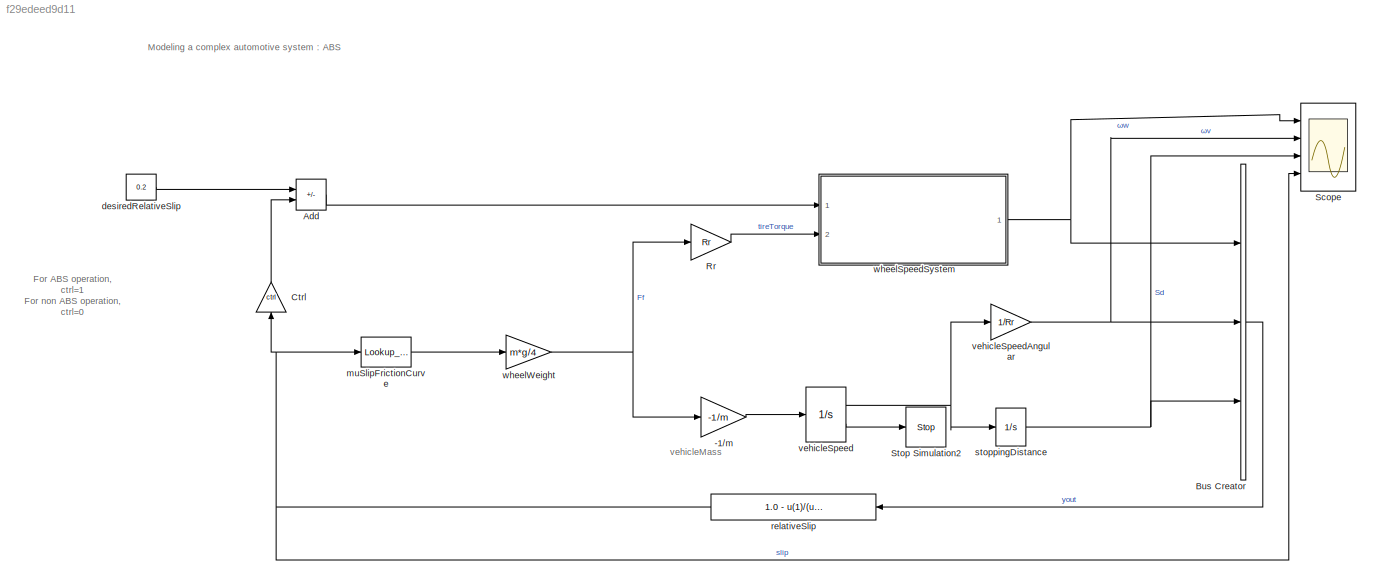
MODEL slx_f29edeed9d11
KIND model
CONFIG AbsTol = 1e-6
CONFIG EnableMultiTasking = off
CONFIG FixedStep = auto
CONFIG InitFcn = g = 32.18;\nv0 = 88;\nRr = 15/12;  \nKf = 1;\nm = 50;\nPBmax = 1500;\nTB = 0.01;\nI = 5;\n\nslip = (0:.05:1.0); \nmu = [0 .4 .8 .97 1.0 .98 .96 .94 .92 .9 .88 .855 .83 .81 .79 .77 .75 .73 .72 .71 .7];\nctrl = 1;
CONFIG MaxStep = 0.01
CONFIG MinStep = auto
CONFIG PostLoadFcn = g = 32.18;\nv0 = 88;\nRr = 15/12;  \nKf = 1;\nm = 50;\nPBmax = 1500;\nTB = 0.01;\nI = 5;\n\nslip = (0:.05:1.0); \nmu = [0 .4 .8 .97 1.0 .98 .96 .94 .92 .9 .88 .855 .83 .81 .79 .77 .75 .73 .72 .71 .7];\nctrl = 1;
CONFIG RelTol = 1e-3
CONFIG SampleTimeConstraint = Unconstrained
CONFIG SolverName = ode45
CONFIG StartTime = 0.0
CONFIG StopTime = 25
BLOCK [Gain] -1//m
  Gain = -1/m
  OutDataTypeStr = Inherit: Same as input
  ParamDataTypeStr = Inherit: Same as input
  SaturateOnIntegerOverflow = on
BLOCK [Sum] Add
  IconShape = rectangular
  Inputs = +-
  Ports = [2, 1]
BLOCK [BusCreator] Bus Creator
  DisplayOption = bar
  InheritFromInputs = on
  Inputs = 3
  Ports = [3, 1]
BLOCK [Gain] Ctrl
  Gain = ctrl
  NameLocation = left
  OutDataTypeStr = Inherit: Same as input
  ParamDataTypeStr = Inherit: Same as input
  SaturateOnIntegerOverflow = on
BLOCK [Gain] Rr
  Gain = Rr
  OutDataTypeStr = Inherit: Same as input
  ParamDataTypeStr = Inherit: Same as input
  SaturateOnIntegerOverflow = on
BLOCK [Scope] Scope
  Floating = off
  NumInputPorts = 4
  Ports = [4]
  ScopeSpecificationString = Simulink.scopes.TimeScopeBlockCfg('CurrentConfiguration', extmgr.ConfigurationSet(extmgr.Configuration('Core','General UI',true),extmgr.Configuration('Core','Source UI',true),extmgr.Configuration('Sources','WiredSimulink',true),extmgr.Configuration('Visuals','Time Domain',true,'SerializedDisplays',{struct('MinYLimReal','-8.8','MaxYLimReal','79.2','YLabelReal','','MinYLimMag','0.00000','MaxYLimMag'...<+3414ch>
BLOCK [Stop] Stop Simulation2
BLOCK [Constant] desiredRelativeSlip
  Value = 0.2
BLOCK [Lookup_n-D] muSlipFrictionCurve
  BreakpointsForDimension1 = slip
  InputPortMap = u0
  NumberOfTableDimensions = 1
  Ports = [1, 1]
  SaturateOnIntegerOverflow = on
  Table = mu
BLOCK [Fcn] relativeSlip
  Expr = 1.0 - u(1)/(u(2) + (u(2)==0)*eps)
BLOCK [Integrator] stoppingDistance
  LowerSaturationLimit = 0
  Ports = [1, 1]
  UpperSaturationLimit = 1000
BLOCK [Integrator] vehicleSpeed
  InitialCondition = v0
  LimitOutput = on
  LowerSaturationLimit = 0
  Ports = [1, 2]
  ShowSaturationPort = on
  UpperSaturationLimit = 1000
BLOCK [Gain] vehicleSpeedAngular
  Gain = 1/Rr
  OutDataTypeStr = Inherit: Same as input
  ParamDataTypeStr = Inherit: Same as input
  SaturateOnIntegerOverflow = on
BLOCK [ModelReference] wheelSpeedSystem
  ModelNameDialog = wheelSpeedSystem
  ModelReferenceVersion = 1.16
  Ports = [2, 1]
BLOCK [Gain] wheelWeight
  Gain = m*g/4
  OutDataTypeStr = Inherit: Same as input
  ParamDataTypeStr = Inherit: Same as input
  SaturateOnIntegerOverflow = on
ANNOTATION (root): Modeling a complex automotive system : ABS
ANNOTATION (root): For ABS operation, ctrl=1 For non ABS operation, ctrl=0
ANNOTATION (root): vehicleMass
LINE -1//m:1 -> vehicleSpeed:1
LINE Add:1 -> wheelSpeedSystem:1
LINE Bus Creator:1 -> relativeSlip:1
LINE Ctrl:1 -> Add:2
LINE Rr:1 -> wheelSpeedSystem:2
LINE desiredRelativeSlip:1 -> Add:1
LINE muSlipFrictionCurve:1 -> wheelWeight:1
NET relativeSlip:1 -> Ctrl:1, Scope:4, muSlipFrictionCurve:1
NET stoppingDistance:1 -> Bus Creator:3, Scope:3
NET vehicleSpeed:1 -> stoppingDistance:1, vehicleSpeedAngular:1
LINE vehicleSpeed:2 -> Stop Simulation2:1
NET vehicleSpeedAngular:1 -> Bus Creator:2, Scope:2
NET wheelSpeedSystem:1 -> Bus Creator:1, Scope:1
NET wheelWeight:1 -> -1//m:1, Rr:1
note: NET lines group one-source signal fan-out (src -> all destinations, sorted); 1:1 wires keep LINE
